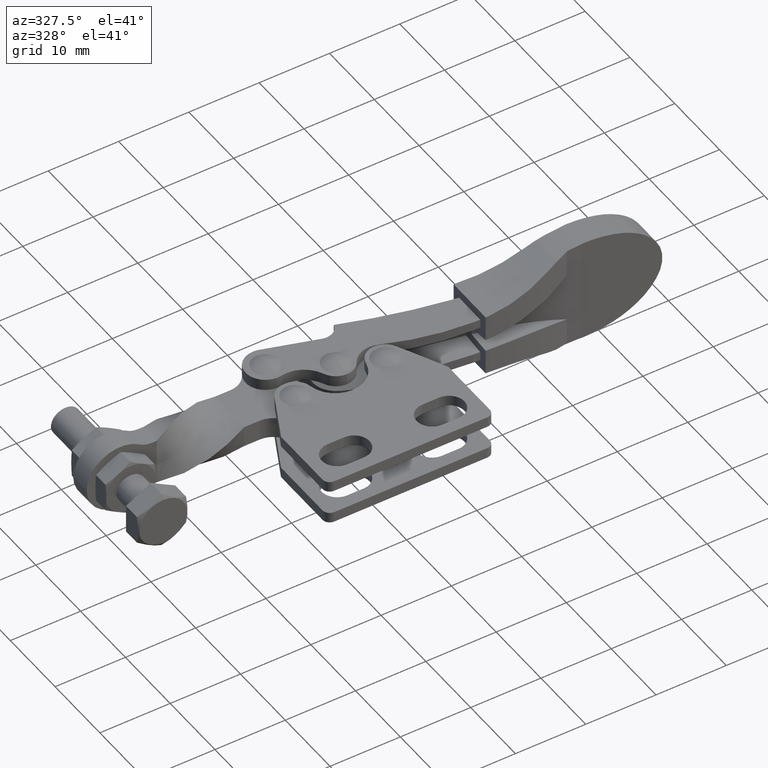
[diagram: clean part render]
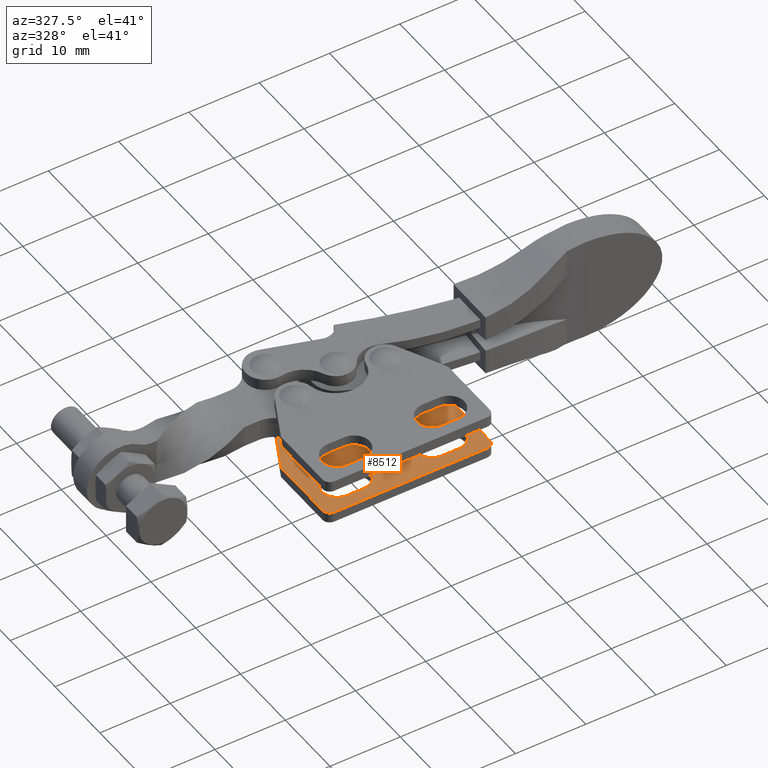
[diagram: same view with one face highlighted and labeled with its STEP entity id]
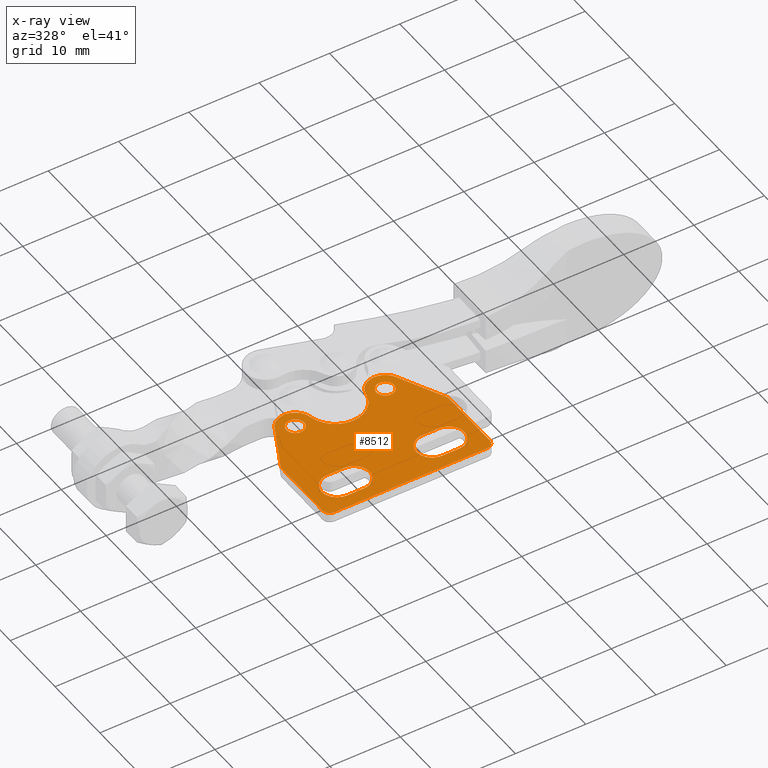
[diagram: x-ray of the same camera — body ghosted, the highlighted face saturated]
A machine part, auxiliary view. The second image highlights one B-rep face of the part: STEP entity #8512.
The next image is the same camera in x-ray: the body ghosted, the highlighted face saturated — about 0% of this face is hidden behind the body in this view.
In plain terms, the highlighted planar face has unit normal (0, 0, 1).
Its self-contained STEP definition (entity closure, byte-faithful):
#8 = AXIS2_PLACEMENT_3D ( 'NONE', #8417, #4018, #9200 ) ;
#26 = EDGE_CURVE ( 'NONE', #7906, #6598, #4538, .T. ) ;
#82 = ORIENTED_EDGE ( 'NONE', *, *, #2466, .F. ) ;
#91 = EDGE_CURVE ( 'NONE', #2756, #3851, #2376, .T. ) ;
#161 = DIRECTION ( 'NONE',  ( 0.0000000000000000000, 0.0000000000000000000, 1.000000000000000000 ) ) ;
#223 = DIRECTION ( 'NONE',  ( 1.000000000000000000, 0.0000000000000000000, 0.0000000000000000000 ) ) ;
#236 = EDGE_LOOP ( 'NONE', ( #6613, #7966, #7382, #7735, #2106 ) ) ;
#359 = DIRECTION ( 'NONE',  ( -1.000000000000000000, -0.0000000000000000000, 0.0000000000000000000 ) ) ;
#411 = VECTOR ( 'NONE', #6079, 1000.000000000000000 ) ;
#415 = CARTESIAN_POINT ( 'NONE',  ( 19.84999999999999800, 3.950000000000000200, -1.699999999999851900 ) ) ;
#476 = CARTESIAN_POINT ( 'NONE',  ( 17.44999999999999900, 3.950000000000000200, -1.699999999999851900 ) ) ;
#490 = AXIS2_PLACEMENT_3D ( 'NONE', #6921, #2582, #7674 ) ;
#527 = ORIENTED_EDGE ( 'NONE', *, *, #3812, .T. ) ;
#541 = CARTESIAN_POINT ( 'NONE',  ( 22.05000000000000100, 3.950000000000000200, -1.699999999999851900 ) ) ;
#595 = CIRCLE ( 'NONE', #7003, 2.200000000000000600 ) ;
#604 = CARTESIAN_POINT ( 'NONE',  ( 1.000000000000000000, 0.0000000000000000000, -1.699999999999851900 ) ) ;
#605 = EDGE_CURVE ( 'NONE', #4970, #9556, #9528, .T. ) ;
#633 = LINE ( 'NONE', #4637, #411 ) ;
#642 = CARTESIAN_POINT ( 'NONE',  ( 6.349999999999999600, 6.150000000000001200, -1.699999999999851900 ) ) ;
#673 = DIRECTION ( 'NONE',  ( -1.000000000000000000, -0.0000000000000000000, 0.0000000000000000000 ) ) ;
#715 = DIRECTION ( 'NONE',  ( 1.000000000000000000, 0.0000000000000000000, 0.0000000000000000000 ) ) ;
#859 = AXIS2_PLACEMENT_3D ( 'NONE', #4541, #5983, #1621 ) ;
#886 = CARTESIAN_POINT ( 'NONE',  ( 23.79999999999959900, 10.30000000000008600, -1.699999999999851900 ) ) ;
#982 = EDGE_CURVE ( 'NONE', #8984, #3602, #2970, .T. ) ;
#1207 = DIRECTION ( 'NONE',  ( 1.000000000000000000, 0.0000000000000000000, 0.0000000000000000000 ) ) ;
#1357 = VERTEX_POINT ( 'NONE', #9162 ) ;
#1361 = ORIENTED_EDGE ( 'NONE', *, *, #8651, .F. ) ;
#1577 = DIRECTION ( 'NONE',  ( 0.0000000000000000000, 0.0000000000000000000, 1.000000000000000000 ) ) ;
#1621 = DIRECTION ( 'NONE',  ( 1.000000000000000000, 0.0000000000000000000, -0.0000000000000000000 ) ) ;
#1652 = EDGE_CURVE ( 'NONE', #6845, #6225, #5216, .T. ) ;
#1745 = CARTESIAN_POINT ( 'NONE',  ( 2.999999999999891600, 1.749999999999999800, -1.699999999999851900 ) ) ;
#1903 = EDGE_CURVE ( 'NONE', #9545, #2568, #5652, .T. ) ;
#1926 = CARTESIAN_POINT ( 'NONE',  ( 22.79999999999959900, 1.000000000000000000, -1.699999999999851900 ) ) ;
#1987 = EDGE_CURVE ( 'NONE', #9517, #7030, #9419, .T. ) ;
#2106 = ORIENTED_EDGE ( 'NONE', *, *, #3640, .F. ) ;
#2114 = VERTEX_POINT ( 'NONE', #2610 ) ;
#2129 = ORIENTED_EDGE ( 'NONE', *, *, #9240, .T. ) ;
#2342 = CIRCLE ( 'NONE', #9061, 2.200000000000000600 ) ;
#2376 = CIRCLE ( 'NONE', #6970, 2.499999999999998700 ) ;
#2466 = EDGE_CURVE ( 'NONE', #6598, #7906, #8923, .T. ) ;
#2502 = ORIENTED_EDGE ( 'NONE', *, *, #7268, .F. ) ;
#2509 = DIRECTION ( 'NONE',  ( 1.000000000000000000, 0.0000000000000000000, -0.0000000000000000000 ) ) ;
#2511 = CARTESIAN_POINT ( 'NONE',  ( 19.84999999999999800, 6.150000000000001200, -1.699999999999851900 ) ) ;
#2517 = LINE ( 'NONE', #1745, #8126 ) ;
#2534 = DIRECTION ( 'NONE',  ( 0.0000000000000000000, 0.0000000000000000000, 1.000000000000000000 ) ) ;
#2568 = VERTEX_POINT ( 'NONE', #9534 ) ;
#2582 = DIRECTION ( 'NONE',  ( 0.0000000000000000000, 0.0000000000000000000, 1.000000000000000000 ) ) ;
#2610 = CARTESIAN_POINT ( 'NONE',  ( 19.84999999999999800, 1.749999999999999800, -1.699999999999851900 ) ) ;
#2627 = CARTESIAN_POINT ( 'NONE',  ( 22.79999999999959900, 0.0000000000000000000, -1.699999999999851900 ) ) ;
#2667 = DIRECTION ( 'NONE',  ( 1.000000000000000000, 0.0000000000000000000, 0.0000000000000000000 ) ) ;
#2756 = VERTEX_POINT ( 'NONE', #5749 ) ;
#2780 = DIRECTION ( 'NONE',  ( 1.000000000000000000, 0.0000000000000000000, 0.0000000000000000000 ) ) ;
#2794 = ORIENTED_EDGE ( 'NONE', *, *, #5017, .F. ) ;
#2912 = DIRECTION ( 'NONE',  ( 0.0000000000000000000, 0.0000000000000000000, 1.000000000000000000 ) ) ;
#2924 = CARTESIAN_POINT ( 'NONE',  ( 3.950000000000000200, 6.150000000000001200, -1.699999999999851900 ) ) ;
#2931 = EDGE_CURVE ( 'NONE', #5638, #8888, #4516, .T. ) ;
#2960 = EDGE_CURVE ( 'NONE', #9556, #4200, #7942, .T. ) ;
#2970 = CIRCLE ( 'NONE', #3351, 2.500000000000002200 ) ;
#3021 = DIRECTION ( 'NONE',  ( 1.000000000000000000, 0.0000000000000000000, 0.0000000000000000000 ) ) ;
#3223 = VERTEX_POINT ( 'NONE', #5497 ) ;
#3315 = EDGE_LOOP ( 'NONE', ( #2794, #4244, #5264, #2502, #1361 ) ) ;
#3324 = AXIS2_PLACEMENT_3D ( 'NONE', #3365, #8505, #4089 ) ;
#3330 = CIRCLE ( 'NONE', #7465, 1.250000000000000200 ) ;
#3351 = AXIS2_PLACEMENT_3D ( 'NONE', #7061, #6739, #5616 ) ;
#3365 = CARTESIAN_POINT ( 'NONE',  ( 3.950000000000000200, 3.950000000000000200, -1.699999999999851900 ) ) ;
#3382 = CARTESIAN_POINT ( 'NONE',  ( 2.999999999999891600, 6.150000000000001200, -1.699999999999851900 ) ) ;
#3392 = CIRCLE ( 'NONE', #7888, 2.200000000000000600 ) ;
#3420 = EDGE_CURVE ( 'NONE', #6107, #6845, #595, .T. ) ;
#3426 = FACE_OUTER_BOUND ( 'NONE', #5573, .T. ) ;
#3460 = CARTESIAN_POINT ( 'NONE',  ( 0.0000000000000000000, 1.000000000000000000, -1.699999999999851900 ) ) ;
#3462 = EDGE_CURVE ( 'NONE', #8132, #4970, #2342, .T. ) ;
#3468 = CARTESIAN_POINT ( 'NONE',  ( 19.54924995604967800, 15.75000000000009800, -1.699999999999851900 ) ) ;
#3602 = VERTEX_POINT ( 'NONE', #8576 ) ;
#3625 = LINE ( 'NONE', #7099, #5086 ) ;
#3640 = EDGE_CURVE ( 'NONE', #1357, #8132, #9269, .T. ) ;
#3653 = CIRCLE ( 'NONE', #490, 1.000000000000000000 ) ;
#3812 = EDGE_CURVE ( 'NONE', #3602, #5638, #7263, .T. ) ;
#3851 = VERTEX_POINT ( 'NONE', #7889 ) ;
#3861 = ORIENTED_EDGE ( 'NONE', *, *, #1903, .F. ) ;
#4018 = DIRECTION ( 'NONE',  ( -0.0000000000000000000, -0.0000000000000000000, -1.000000000000000000 ) ) ;
#4063 = DIRECTION ( 'NONE',  ( -0.4451026196324694400, 0.8954795687207571800, -0.0000000000000000000 ) ) ;
#4089 = DIRECTION ( 'NONE',  ( 1.000000000000000000, 0.0000000000000000000, 0.0000000000000000000 ) ) ;
#4100 = CARTESIAN_POINT ( 'NONE',  ( 6.349999999999999600, 1.749999999999999800, -1.699999999999851900 ) ) ;
#4200 = VERTEX_POINT ( 'NONE', #2924 ) ;
#4244 = ORIENTED_EDGE ( 'NONE', *, *, #1652, .F. ) ;
#4340 = EDGE_CURVE ( 'NONE', #3223, #5342, #633, .T. ) ;
#4376 = CARTESIAN_POINT ( 'NONE',  ( 17.44999999999999900, 6.150000000000001200, -1.699999999999851900 ) ) ;
#4437 = AXIS2_PLACEMENT_3D ( 'NONE', #1926, #7017, #2667 ) ;
#4497 = DIRECTION ( 'NONE',  ( 0.0000000000000000000, 0.0000000000000000000, 1.000000000000000000 ) ) ;
#4504 = EDGE_CURVE ( 'NONE', #5342, #2756, #3625, .T. ) ;
#4516 = LINE ( 'NONE', #6302, #6422 ) ;
#4538 = CIRCLE ( 'NONE', #6488, 1.250000000000001100 ) ;
#4541 = CARTESIAN_POINT ( 'NONE',  ( 2.999999999999891600, 3.000000000000113700, -1.699999999999851900 ) ) ;
#4550 = CARTESIAN_POINT ( 'NONE',  ( 17.04924995604967500, 15.75000000000009800, -1.699999999999851900 ) ) ;
#4566 = AXIS2_PLACEMENT_3D ( 'NONE', #7461, #2534, #2780 ) ;
#4592 = AXIS2_PLACEMENT_3D ( 'NONE', #9583, #5090, #715 ) ;
#4637 = CARTESIAN_POINT ( 'NONE',  ( 23.79999999999959900, 3.000000000000113700, -1.699999999999851900 ) ) ;
#4702 = ORIENTED_EDGE ( 'NONE', *, *, #4340, .T. ) ;
#4756 = ORIENTED_EDGE ( 'NONE', *, *, #9307, .T. ) ;
#4781 = ORIENTED_EDGE ( 'NONE', *, *, #9222, .T. ) ;
#4824 = VERTEX_POINT ( 'NONE', #6090 ) ;
#4829 = CARTESIAN_POINT ( 'NONE',  ( 8.550000000000000700, 3.950000000000000200, -1.699999999999851900 ) ) ;
#4907 = CARTESIAN_POINT ( 'NONE',  ( 2.999999999999891600, 0.0000000000000000000, -1.699999999999851900 ) ) ;
#4970 = VERTEX_POINT ( 'NONE', #4829 ) ;
#5017 = EDGE_CURVE ( 'NONE', #6225, #4824, #3392, .T. ) ;
#5055 = VECTOR ( 'NONE', #7182, 1000.000000000000000 ) ;
#5086 = VECTOR ( 'NONE', #4063, 1000.000000000000100 ) ;
#5090 = DIRECTION ( 'NONE',  ( 0.0000000000000000000, 0.0000000000000000000, 1.000000000000000000 ) ) ;
#5123 = FACE_BOUND ( 'NONE', #6997, .T. ) ;
#5208 = VECTOR ( 'NONE', #8606, 1000.000000000000000 ) ;
#5216 = LINE ( 'NONE', #3382, #7156 ) ;
#5264 = ORIENTED_EDGE ( 'NONE', *, *, #3420, .F. ) ;
#5271 = DIRECTION ( 'NONE',  ( -0.4451026196324809900, -0.8954795687207514100, 0.0000000000000000000 ) ) ;
#5319 = VECTOR ( 'NONE', #5271, 1000.000000000000100 ) ;
#5342 = VERTEX_POINT ( 'NONE', #886 ) ;
#5446 = ORIENTED_EDGE ( 'NONE', *, *, #26, .F. ) ;
#5497 = CARTESIAN_POINT ( 'NONE',  ( 23.79999999999959900, 1.000000000000000000, -1.699999999999851900 ) ) ;
#5573 = EDGE_LOOP ( 'NONE', ( #6392, #2129, #8220, #4756, #4702, #6281, #6054, #4781, #8375, #527 ) ) ;
#5577 = DIRECTION ( 'NONE',  ( 0.0000000000000000000, 0.0000000000000000000, 1.000000000000000000 ) ) ;
#5616 = DIRECTION ( 'NONE',  ( 1.000000000000000000, 0.0000000000000000000, 0.0000000000000000000 ) ) ;
#5638 = VERTEX_POINT ( 'NONE', #7892 ) ;
#5652 = CIRCLE ( 'NONE', #4566, 1.250000000000000200 ) ;
#5749 = CARTESIAN_POINT ( 'NONE',  ( 20.53794887785156600, 16.86275654908127600, -1.699999999999851900 ) ) ;
#5924 = CARTESIAN_POINT ( 'NONE',  ( 3.262051122148040200, 16.86275654908130100, -1.699999999999851900 ) ) ;
#5932 = CARTESIAN_POINT ( 'NONE',  ( 5.500750043949922800, 15.75000000000009800, -1.699999999999851900 ) ) ;
#5974 = VECTOR ( 'NONE', #673, 1000.000000000000000 ) ;
#5983 = DIRECTION ( 'NONE',  ( 0.0000000000000000000, 0.0000000000000000000, 1.000000000000000000 ) ) ;
#6035 = CARTESIAN_POINT ( 'NONE',  ( 6.349999999999999600, 3.950000000000000200, -1.699999999999851900 ) ) ;
#6054 = ORIENTED_EDGE ( 'NONE', *, *, #91, .T. ) ;
#6079 = DIRECTION ( 'NONE',  ( 0.0000000000000000000, 1.000000000000000000, 0.0000000000000000000 ) ) ;
#6090 = CARTESIAN_POINT ( 'NONE',  ( 17.44999999999999900, 1.749999999999999800, -1.699999999999851900 ) ) ;
#6097 = DIRECTION ( 'NONE',  ( 0.0000000000000000000, 0.0000000000000000000, 1.000000000000000000 ) ) ;
#6107 = VERTEX_POINT ( 'NONE', #541 ) ;
#6225 = VERTEX_POINT ( 'NONE', #4376 ) ;
#6281 = ORIENTED_EDGE ( 'NONE', *, *, #4504, .T. ) ;
#6296 = CIRCLE ( 'NONE', #3324, 2.200000000000000600 ) ;
#6302 = CARTESIAN_POINT ( 'NONE',  ( 0.0000000000000000000, 3.000000000000113700, -1.699999999999851900 ) ) ;
#6392 = ORIENTED_EDGE ( 'NONE', *, *, #2931, .T. ) ;
#6397 = DIRECTION ( 'NONE',  ( -0.0000000000000000000, -1.000000000000000000, -0.0000000000000000000 ) ) ;
#6422 = VECTOR ( 'NONE', #6397, 1000.000000000000000 ) ;
#6437 = CARTESIAN_POINT ( 'NONE',  ( 6.750750043949923700, 15.75000000000009800, -1.699999999999851900 ) ) ;
#6488 = AXIS2_PLACEMENT_3D ( 'NONE', #8494, #4497, #9303 ) ;
#6506 = CARTESIAN_POINT ( 'NONE',  ( 2.999999999999891600, 6.150000000000001200, -1.699999999999851900 ) ) ;
#6536 = DIRECTION ( 'NONE',  ( 1.000000000000000000, 0.0000000000000000000, 0.0000000000000000000 ) ) ;
#6598 = VERTEX_POINT ( 'NONE', #3468 ) ;
#6613 = ORIENTED_EDGE ( 'NONE', *, *, #7008, .F. ) ;
#6616 = DIRECTION ( 'NONE',  ( 1.000000000000000000, 0.0000000000000000000, 0.0000000000000000000 ) ) ;
#6620 = AXIS2_PLACEMENT_3D ( 'NONE', #6035, #2912, #6616 ) ;
#6657 = DIRECTION ( 'NONE',  ( 0.0000000000000000000, 0.0000000000000000000, 1.000000000000000000 ) ) ;
#6661 = DIRECTION ( 'NONE',  ( 1.000000000000000000, 0.0000000000000000000, 0.0000000000000000000 ) ) ;
#6739 = DIRECTION ( 'NONE',  ( 0.0000000000000000000, 0.0000000000000000000, 1.000000000000000000 ) ) ;
#6845 = VERTEX_POINT ( 'NONE', #2511 ) ;
#6921 = CARTESIAN_POINT ( 'NONE',  ( 1.000000000000000000, 1.000000000000000000, -1.699999999999851900 ) ) ;
#6970 = AXIS2_PLACEMENT_3D ( 'NONE', #7554, #6097, #3021 ) ;
#6997 = EDGE_LOOP ( 'NONE', ( #5446, #82 ) ) ;
#7003 = AXIS2_PLACEMENT_3D ( 'NONE', #415, #161, #223 ) ;
#7008 = EDGE_CURVE ( 'NONE', #4200, #1357, #6296, .T. ) ;
#7017 = DIRECTION ( 'NONE',  ( 0.0000000000000000000, 0.0000000000000000000, 1.000000000000000000 ) ) ;
#7030 = VERTEX_POINT ( 'NONE', #2627 ) ;
#7051 = FACE_BOUND ( 'NONE', #9060, .T. ) ;
#7061 = CARTESIAN_POINT ( 'NONE',  ( 5.500750043949922000, 15.75000000000009800, -1.699999999999851900 ) ) ;
#7099 = CARTESIAN_POINT ( 'NONE',  ( 20.53794887785156600, 16.86275654908127600, -1.699999999999851900 ) ) ;
#7100 = DIRECTION ( 'NONE',  ( 0.0000000000000000000, 0.0000000000000000000, 1.000000000000000000 ) ) ;
#7113 = CARTESIAN_POINT ( 'NONE',  ( 6.349999999999999600, 3.950000000000000200, -1.699999999999851900 ) ) ;
#7156 = VECTOR ( 'NONE', #359, 1000.000000000000000 ) ;
#7182 = DIRECTION ( 'NONE',  ( 1.000000000000000000, 0.0000000000000000000, -0.0000000000000000000 ) ) ;
#7263 = LINE ( 'NONE', #5924, #5319 ) ;
#7268 = EDGE_CURVE ( 'NONE', #2114, #6107, #7443, .T. ) ;
#7382 = ORIENTED_EDGE ( 'NONE', *, *, #605, .F. ) ;
#7394 = CARTESIAN_POINT ( 'NONE',  ( 2.999999999999891600, 1.749999999999999800, -1.699999999999851900 ) ) ;
#7443 = CIRCLE ( 'NONE', #4592, 2.200000000000000600 ) ;
#7461 = CARTESIAN_POINT ( 'NONE',  ( 5.500750043949922800, 15.75000000000009800, -1.699999999999851900 ) ) ;
#7465 = AXIS2_PLACEMENT_3D ( 'NONE', #5932, #1577, #6661 ) ;
#7554 = CARTESIAN_POINT ( 'NONE',  ( 18.29924995604967800, 15.75000000000009800, -1.699999999999851900 ) ) ;
#7674 = DIRECTION ( 'NONE',  ( 1.000000000000000000, 0.0000000000000000000, 0.0000000000000000000 ) ) ;
#7735 = ORIENTED_EDGE ( 'NONE', *, *, #3462, .F. ) ;
#7739 = ORIENTED_EDGE ( 'NONE', *, *, #7809, .F. ) ;
#7809 = EDGE_CURVE ( 'NONE', #2568, #9545, #3330, .T. ) ;
#7888 = AXIS2_PLACEMENT_3D ( 'NONE', #476, #5577, #1207 ) ;
#7889 = CARTESIAN_POINT ( 'NONE',  ( 15.83799997295369400, 16.18846153846159900, -1.699999999999851900 ) ) ;
#7892 = CARTESIAN_POINT ( 'NONE',  ( 0.0000000000000000000, 10.30000000000031000, -1.699999999999851900 ) ) ;
#7906 = VERTEX_POINT ( 'NONE', #4550 ) ;
#7942 = LINE ( 'NONE', #6506, #5974 ) ;
#7966 = ORIENTED_EDGE ( 'NONE', *, *, #2960, .F. ) ;
#8126 = VECTOR ( 'NONE', #2509, 1000.000000000000000 ) ;
#8132 = VERTEX_POINT ( 'NONE', #4100 ) ;
#8211 = PLANE ( 'NONE',  #859 ) ;
#8220 = ORIENTED_EDGE ( 'NONE', *, *, #1987, .T. ) ;
#8375 = ORIENTED_EDGE ( 'NONE', *, *, #982, .T. ) ;
#8417 = CARTESIAN_POINT ( 'NONE',  ( 11.89999999999980000, 16.89000000000005700, -1.699999999999851900 ) ) ;
#8494 = CARTESIAN_POINT ( 'NONE',  ( 18.29924995604967800, 15.75000000000009800, -1.699999999999851900 ) ) ;
#8505 = DIRECTION ( 'NONE',  ( 0.0000000000000000000, 0.0000000000000000000, 1.000000000000000000 ) ) ;
#8512 = ADVANCED_FACE ( 'NONE', ( #9087, #9338, #3426, #7051, #5123 ), #8211, .T. ) ;
#8576 = CARTESIAN_POINT ( 'NONE',  ( 3.262051122148043700, 16.86275654908130100, -1.699999999999851900 ) ) ;
#8606 = DIRECTION ( 'NONE',  ( 1.000000000000000000, 0.0000000000000000000, 0.0000000000000000000 ) ) ;
#8651 = EDGE_CURVE ( 'NONE', #4824, #2114, #2517, .T. ) ;
#8694 = CARTESIAN_POINT ( 'NONE',  ( 7.962000027045903900, 16.18846153846159900, -1.699999999999851900 ) ) ;
#8791 = AXIS2_PLACEMENT_3D ( 'NONE', #9482, #7100, #8840 ) ;
#8840 = DIRECTION ( 'NONE',  ( 1.000000000000000000, 0.0000000000000000000, 0.0000000000000000000 ) ) ;
#8888 = VERTEX_POINT ( 'NONE', #3460 ) ;
#8923 = CIRCLE ( 'NONE', #8791, 1.250000000000001100 ) ;
#8984 = VERTEX_POINT ( 'NONE', #8694 ) ;
#9060 = EDGE_LOOP ( 'NONE', ( #7739, #3861 ) ) ;
#9061 = AXIS2_PLACEMENT_3D ( 'NONE', #7113, #6657, #6536 ) ;
#9087 = FACE_BOUND ( 'NONE', #236, .T. ) ;
#9089 = CIRCLE ( 'NONE', #4437, 1.000000000000000900 ) ;
#9162 = CARTESIAN_POINT ( 'NONE',  ( 3.950000000000000200, 1.749999999999999800, -1.699999999999851900 ) ) ;
#9200 = DIRECTION ( 'NONE',  ( 1.000000000000000000, 0.0000000000000000000, 0.0000000000000000000 ) ) ;
#9222 = EDGE_CURVE ( 'NONE', #3851, #8984, #9341, .T. ) ;
#9240 = EDGE_CURVE ( 'NONE', #8888, #9517, #3653, .T. ) ;
#9269 = LINE ( 'NONE', #7394, #5055 ) ;
#9303 = DIRECTION ( 'NONE',  ( 1.000000000000000000, 0.0000000000000000000, 0.0000000000000000000 ) ) ;
#9307 = EDGE_CURVE ( 'NONE', #7030, #3223, #9089, .T. ) ;
#9338 = FACE_BOUND ( 'NONE', #3315, .T. ) ;
#9341 = CIRCLE ( 'NONE', #8, 4.000000000000329500 ) ;
#9419 = LINE ( 'NONE', #4907, #5208 ) ;
#9482 = CARTESIAN_POINT ( 'NONE',  ( 18.29924995604967800, 15.75000000000009800, -1.699999999999851900 ) ) ;
#9517 = VERTEX_POINT ( 'NONE', #604 ) ;
#9528 = CIRCLE ( 'NONE', #6620, 2.200000000000000600 ) ;
#9534 = CARTESIAN_POINT ( 'NONE',  ( 4.250750043949922800, 15.75000000000009800, -1.699999999999851900 ) ) ;
#9545 = VERTEX_POINT ( 'NONE', #6437 ) ;
#9556 = VERTEX_POINT ( 'NONE', #642 ) ;
#9583 = CARTESIAN_POINT ( 'NONE',  ( 19.84999999999999800, 3.950000000000000200, -1.699999999999851900 ) ) ;